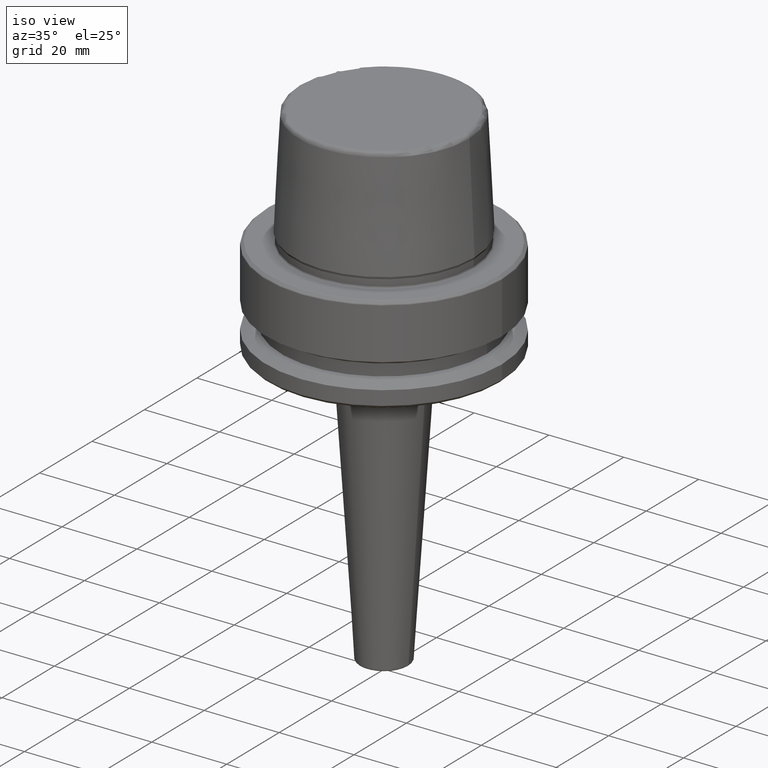
[diagram: clean part render]
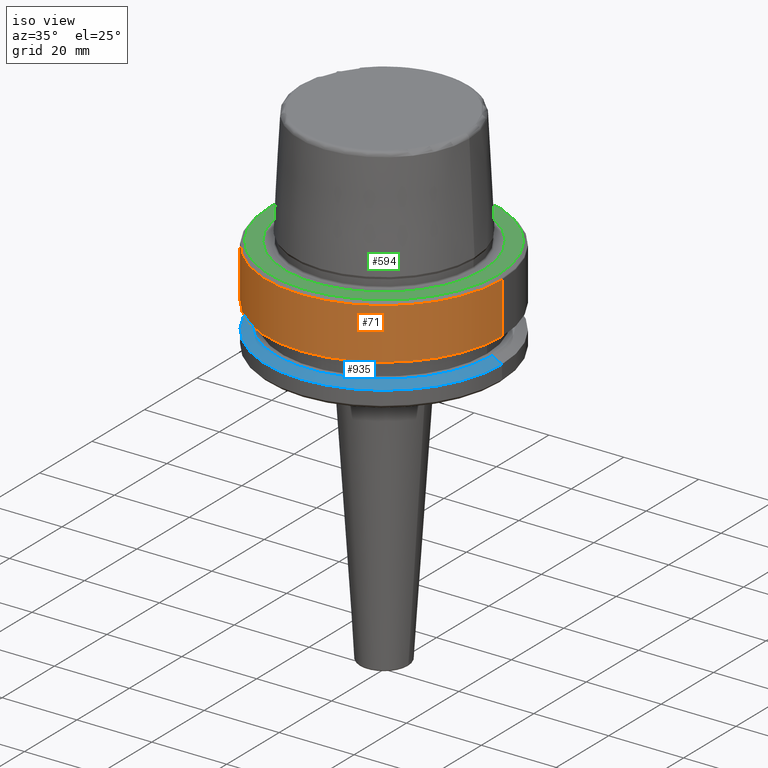
[diagram: same view with three faces highlighted in distinct colors, each labeled with its STEP entity id]
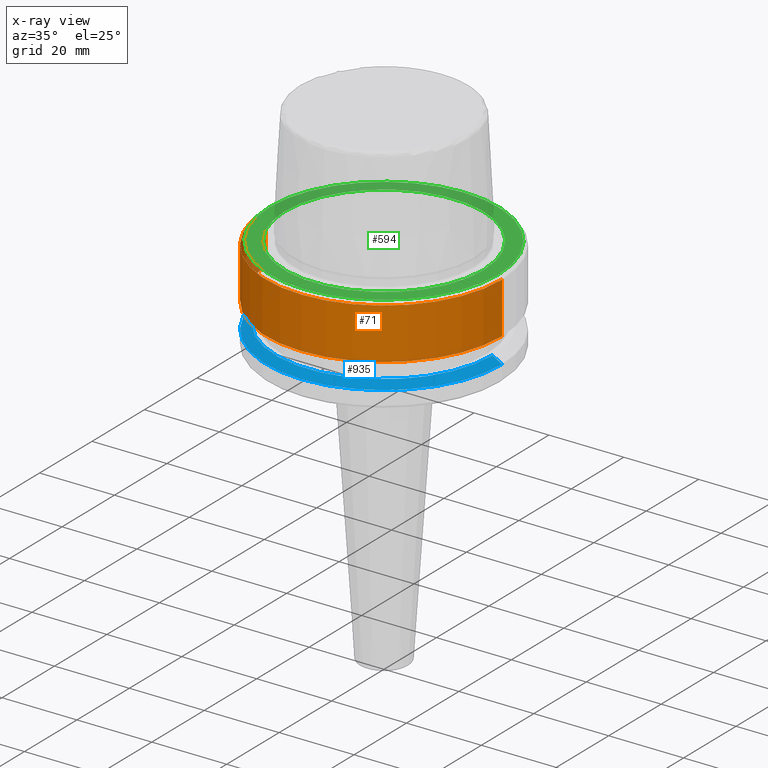
[diagram: x-ray of the same camera — body ghosted, the three highlighted faces saturated]
A machine part, iso view with three faces highlighted in distinct colors.
The next image is the same camera in x-ray (body ghosted, the three faces saturated) — at least one of them is partly hidden behind the body in this view.
Their STEP definitions:

[orange] entity #71 — the highlighted cylindrical surface (partial cylindrical patch) has radius 31.5 mm, axis along (-0, -0, 1).
#1 = CARTESIAN_POINT ( 'NONE',  ( -31.50000000000000000, 3.857637417314162700E-015, -14.62250092524070100 ) ) ;
#35 = VERTEX_POINT ( 'NONE', #348 ) ;
#71 = ADVANCED_FACE ( 'NONE', ( #934 ), #970, .T. ) ;
#114 = CARTESIAN_POINT ( 'NONE',  ( 0.0000000000000000000, 0.0000000000000000000, -0.9656854249492363700 ) ) ;
#124 = VECTOR ( 'NONE', #331, 1000.000000000000000 ) ;
#129 = CARTESIAN_POINT ( 'NONE',  ( 0.0000000000000000000, 0.0000000000000000000, 78.96908074195309300 ) ) ;
#136 = EDGE_CURVE ( 'NONE', #498, #229, #1160, .T. ) ;
#181 = CARTESIAN_POINT ( 'NONE',  ( 31.50000000000000000, 0.0000000000000000000, -14.62250092524070100 ) ) ;
#192 = EDGE_CURVE ( 'NONE', #498, #464, #211, .T. ) ;
#211 = CIRCLE ( 'NONE', #865, 31.50000000000000000 ) ;
#229 = VERTEX_POINT ( 'NONE', #984 ) ;
#230 = CARTESIAN_POINT ( 'NONE',  ( 0.0000000000000000000, 0.0000000000000000000, -14.62250092524070100 ) ) ;
#234 = DIRECTION ( 'NONE',  ( -0.0000000000000000000, -0.0000000000000000000, 1.000000000000000000 ) ) ;
#311 = ORIENTED_EDGE ( 'NONE', *, *, #136, .F. ) ;
#331 = DIRECTION ( 'NONE',  ( -0.0000000000000000000, -0.0000000000000000000, 1.000000000000000000 ) ) ;
#347 = EDGE_LOOP ( 'NONE', ( #311, #517, #710, #699 ) ) ;
#348 = CARTESIAN_POINT ( 'NONE',  ( 31.50000000000000700, 0.0000000000000000000, -0.9656854249492363700 ) ) ;
#350 = DIRECTION ( 'NONE',  ( 1.000000000000000000, 0.0000000000000000000, 0.0000000000000000000 ) ) ;
#403 = LINE ( 'NONE', #1041, #770 ) ;
#406 = EDGE_CURVE ( 'NONE', #464, #35, #403, .T. ) ;
#464 = VERTEX_POINT ( 'NONE', #181 ) ;
#498 = VERTEX_POINT ( 'NONE', #1 ) ;
#503 = EDGE_CURVE ( 'NONE', #229, #35, #739, .T. ) ;
#517 = ORIENTED_EDGE ( 'NONE', *, *, #192, .T. ) ;
#613 = CARTESIAN_POINT ( 'NONE',  ( -31.50000000000000000, 3.857637417314162700E-015, 78.96908074195309300 ) ) ;
#626 = AXIS2_PLACEMENT_3D ( 'NONE', #129, #814, #350 ) ;
#652 = AXIS2_PLACEMENT_3D ( 'NONE', #114, #1173, #789 ) ;
#699 = ORIENTED_EDGE ( 'NONE', *, *, #503, .F. ) ;
#710 = ORIENTED_EDGE ( 'NONE', *, *, #406, .T. ) ;
#739 = CIRCLE ( 'NONE', #652, 31.50000000000000700 ) ;
#770 = VECTOR ( 'NONE', #1139, 1000.000000000000000 ) ;
#789 = DIRECTION ( 'NONE',  ( 1.000000000000000000, 0.0000000000000000000, 0.0000000000000000000 ) ) ;
#802 = DIRECTION ( 'NONE',  ( 1.000000000000000000, 0.0000000000000000000, 0.0000000000000000000 ) ) ;
#814 = DIRECTION ( 'NONE',  ( -0.0000000000000000000, -0.0000000000000000000, 1.000000000000000000 ) ) ;
#865 = AXIS2_PLACEMENT_3D ( 'NONE', #230, #234, #802 ) ;
#934 = FACE_OUTER_BOUND ( 'NONE', #347, .T. ) ;
#970 = CYLINDRICAL_SURFACE ( 'NONE', #626, 31.50000000000000000 ) ;
#984 = CARTESIAN_POINT ( 'NONE',  ( -31.50000000000000700, 3.857637417314163500E-015, -0.9656854249492363700 ) ) ;
#1041 = CARTESIAN_POINT ( 'NONE',  ( 31.50000000000000000, 0.0000000000000000000, 78.96908074195309300 ) ) ;
#1139 = DIRECTION ( 'NONE',  ( -0.0000000000000000000, -0.0000000000000000000, 1.000000000000000000 ) ) ;
#1160 = LINE ( 'NONE', #613, #124 ) ;
#1173 = DIRECTION ( 'NONE',  ( -0.0000000000000000000, -0.0000000000000000000, 1.000000000000000000 ) ) ;

[blue] entity #935 — the highlighted conical surface has half-angle 60 deg.
#133 = DIRECTION ( 'NONE',  ( -0.0000000000000000000, -0.0000000000000000000, 1.000000000000000000 ) ) ;
#154 = CIRCLE ( 'NONE', #493, 28.94089653438085100 ) ;
#155 = LINE ( 'NONE', #1011, #717 ) ;
#179 = DIRECTION ( 'NONE',  ( 1.000000000000000000, 0.0000000000000000000, 0.0000000000000000000 ) ) ;
#207 = FACE_OUTER_BOUND ( 'NONE', #1126, .T. ) ;
#246 = DIRECTION ( 'NONE',  ( 1.000000000000000000, 0.0000000000000000000, 0.0000000000000000000 ) ) ;
#249 = CARTESIAN_POINT ( 'NONE',  ( -28.94089653438085100, 0.0000000000000000000, -19.90000000000001600 ) ) ;
#267 = ORIENTED_EDGE ( 'NONE', *, *, #1085, .F. ) ;
#279 = DIRECTION ( 'NONE',  ( 0.8660254037844410400, 1.060575238724909700E-016, -0.4999999999999958400 ) ) ;
#329 = ORIENTED_EDGE ( 'NONE', *, *, #1247, .F. ) ;
#369 = VERTEX_POINT ( 'NONE', #563 ) ;
#370 = VERTEX_POINT ( 'NONE', #470 ) ;
#378 = AXIS2_PLACEMENT_3D ( 'NONE', #644, #637, #246 ) ;
#380 = CARTESIAN_POINT ( 'NONE',  ( 0.0000000000000000000, 0.0000000000000000000, -19.90000000000001600 ) ) ;
#442 = CARTESIAN_POINT ( 'NONE',  ( 31.50000000000000000, 0.0000000000000000000, -21.37749907475931700 ) ) ;
#470 = CARTESIAN_POINT ( 'NONE',  ( -31.50000000000000000, 3.857637417314162700E-015, -21.37749907475931700 ) ) ;
#493 = AXIS2_PLACEMENT_3D ( 'NONE', #380, #133, #179 ) ;
#553 = DIRECTION ( 'NONE',  ( 0.0000000000000000000, 0.0000000000000000000, -1.000000000000000000 ) ) ;
#563 = CARTESIAN_POINT ( 'NONE',  ( 28.94089653438085100, 3.700937523921292900E-015, -19.90000000000001600 ) ) ;
#577 = DIRECTION ( 'NONE',  ( -1.000000000000000000, 0.0000000000000000000, 0.0000000000000000000 ) ) ;
#635 = CIRCLE ( 'NONE', #378, 31.50000000000000000 ) ;
#637 = DIRECTION ( 'NONE',  ( -0.0000000000000000000, -0.0000000000000000000, 1.000000000000000000 ) ) ;
#644 = CARTESIAN_POINT ( 'NONE',  ( 0.0000000000000000000, 0.0000000000000000000, -21.37749907475931700 ) ) ;
#706 = VERTEX_POINT ( 'NONE', #442 ) ;
#717 = VECTOR ( 'NONE', #925, 1000.000000000000100 ) ;
#769 = ORIENTED_EDGE ( 'NONE', *, *, #1062, .T. ) ;
#829 = ORIENTED_EDGE ( 'NONE', *, *, #1090, .T. ) ;
#853 = CONICAL_SURFACE ( 'NONE', #975, 31.50000000000000000, 1.047197551196602500 ) ;
#925 = DIRECTION ( 'NONE',  ( -0.8660254037844410400, 0.0000000000000000000, -0.4999999999999958400 ) ) ;
#926 = CARTESIAN_POINT ( 'NONE',  ( 31.50000000000000000, 3.857637417314162700E-015, -21.37749907475931700 ) ) ;
#935 = ADVANCED_FACE ( 'NONE', ( #207 ), #853, .T. ) ;
#975 = AXIS2_PLACEMENT_3D ( 'NONE', #1154, #553, #577 ) ;
#994 = LINE ( 'NONE', #926, #1155 ) ;
#1011 = CARTESIAN_POINT ( 'NONE',  ( -31.50000000000000000, 0.0000000000000000000, -21.37749907475931700 ) ) ;
#1062 = EDGE_CURVE ( 'NONE', #370, #706, #635, .T. ) ;
#1085 = EDGE_CURVE ( 'NONE', #1244, #369, #154, .T. ) ;
#1090 = EDGE_CURVE ( 'NONE', #1244, #370, #155, .T. ) ;
#1126 = EDGE_LOOP ( 'NONE', ( #329, #267, #829, #769 ) ) ;
#1154 = CARTESIAN_POINT ( 'NONE',  ( 0.0000000000000000000, 0.0000000000000000000, -21.37749907475931700 ) ) ;
#1155 = VECTOR ( 'NONE', #279, 1000.000000000000100 ) ;
#1244 = VERTEX_POINT ( 'NONE', #249 ) ;
#1247 = EDGE_CURVE ( 'NONE', #369, #706, #994, .T. ) ;

[green] entity #594 — the highlighted planar face has unit normal (0, 0, -1).
#7 = EDGE_LOOP ( 'NONE', ( #429, #938 ) ) ;
#56 = VERTEX_POINT ( 'NONE', #906 ) ;
#135 = DIRECTION ( 'NONE',  ( 1.000000000000000000, 0.0000000000000000000, 0.0000000000000000000 ) ) ;
#183 = CIRCLE ( 'NONE', #805, 30.53431457505076100 ) ;
#193 = CARTESIAN_POINT ( 'NONE',  ( 30.53431457505076100, 0.0000000000000000000, 0.0000000000000000000 ) ) ;
#203 = DIRECTION ( 'NONE',  ( -1.000000000000000000, 0.0000000000000000000, -0.0000000000000000000 ) ) ;
#228 = AXIS2_PLACEMENT_3D ( 'NONE', #692, #875, #203 ) ;
#290 = DIRECTION ( 'NONE',  ( -0.0000000000000000000, -0.0000000000000000000, 1.000000000000000000 ) ) ;
#292 = AXIS2_PLACEMENT_3D ( 'NONE', #1097, #813, #135 ) ;
#353 = PLANE ( 'NONE',  #228 ) ;
#382 = CARTESIAN_POINT ( 'NONE',  ( 26.52499999999999900, 0.0000000000000000000, 0.0000000000000000000 ) ) ;
#429 = ORIENTED_EDGE ( 'NONE', *, *, #856, .F. ) ;
#448 = DIRECTION ( 'NONE',  ( 1.000000000000000000, 0.0000000000000000000, 0.0000000000000000000 ) ) ;
#495 = DIRECTION ( 'NONE',  ( -0.0000000000000000000, -0.0000000000000000000, 1.000000000000000000 ) ) ;
#548 = ORIENTED_EDGE ( 'NONE', *, *, #631, .T. ) ;
#594 = ADVANCED_FACE ( 'NONE', ( #1107, #1084 ), #353, .F. ) ;
#624 = CIRCLE ( 'NONE', #292, 30.53431457505076100 ) ;
#631 = EDGE_CURVE ( 'NONE', #1199, #1060, #624, .T. ) ;
#670 = AXIS2_PLACEMENT_3D ( 'NONE', #677, #1220, #1134 ) ;
#676 = EDGE_CURVE ( 'NONE', #1060, #1199, #183, .T. ) ;
#677 = CARTESIAN_POINT ( 'NONE',  ( 0.0000000000000000000, 0.0000000000000000000, 0.0000000000000000000 ) ) ;
#692 = CARTESIAN_POINT ( 'NONE',  ( 0.0000000000000000000, 26.52499999999999900, -1.111307226797642000E-015 ) ) ;
#695 = VERTEX_POINT ( 'NONE', #382 ) ;
#754 = EDGE_LOOP ( 'NONE', ( #756, #548 ) ) ;
#756 = ORIENTED_EDGE ( 'NONE', *, *, #676, .T. ) ;
#795 = CARTESIAN_POINT ( 'NONE',  ( 0.0000000000000000000, 0.0000000000000000000, 0.0000000000000000000 ) ) ;
#805 = AXIS2_PLACEMENT_3D ( 'NONE', #1144, #290, #448 ) ;
#813 = DIRECTION ( 'NONE',  ( -0.0000000000000000000, -0.0000000000000000000, 1.000000000000000000 ) ) ;
#856 = EDGE_CURVE ( 'NONE', #695, #56, #871, .T. ) ;
#871 = CIRCLE ( 'NONE', #670, 26.52499999999999900 ) ;
#875 = DIRECTION ( 'NONE',  ( 0.0000000000000000000, 0.0000000000000000000, -1.000000000000000000 ) ) ;
#906 = CARTESIAN_POINT ( 'NONE',  ( -26.52499999999999900, 3.248375634738354300E-015, 0.0000000000000000000 ) ) ;
#938 = ORIENTED_EDGE ( 'NONE', *, *, #1177, .F. ) ;
#1012 = AXIS2_PLACEMENT_3D ( 'NONE', #795, #495, #1059 ) ;
#1059 = DIRECTION ( 'NONE',  ( 1.000000000000000000, 0.0000000000000000000, 0.0000000000000000000 ) ) ;
#1060 = VERTEX_POINT ( 'NONE', #193 ) ;
#1064 = CARTESIAN_POINT ( 'NONE',  ( -30.53431457505076100, 3.756694181974138600E-015, 0.0000000000000000000 ) ) ;
#1084 = FACE_OUTER_BOUND ( 'NONE', #754, .T. ) ;
#1097 = CARTESIAN_POINT ( 'NONE',  ( 0.0000000000000000000, 0.0000000000000000000, 0.0000000000000000000 ) ) ;
#1107 = FACE_BOUND ( 'NONE', #7, .T. ) ;
#1134 = DIRECTION ( 'NONE',  ( 1.000000000000000000, 0.0000000000000000000, 0.0000000000000000000 ) ) ;
#1144 = CARTESIAN_POINT ( 'NONE',  ( 0.0000000000000000000, 0.0000000000000000000, 0.0000000000000000000 ) ) ;
#1177 = EDGE_CURVE ( 'NONE', #56, #695, #1224, .T. ) ;
#1199 = VERTEX_POINT ( 'NONE', #1064 ) ;
#1220 = DIRECTION ( 'NONE',  ( -0.0000000000000000000, -0.0000000000000000000, 1.000000000000000000 ) ) ;
#1224 = CIRCLE ( 'NONE', #1012, 26.52499999999999900 ) ;